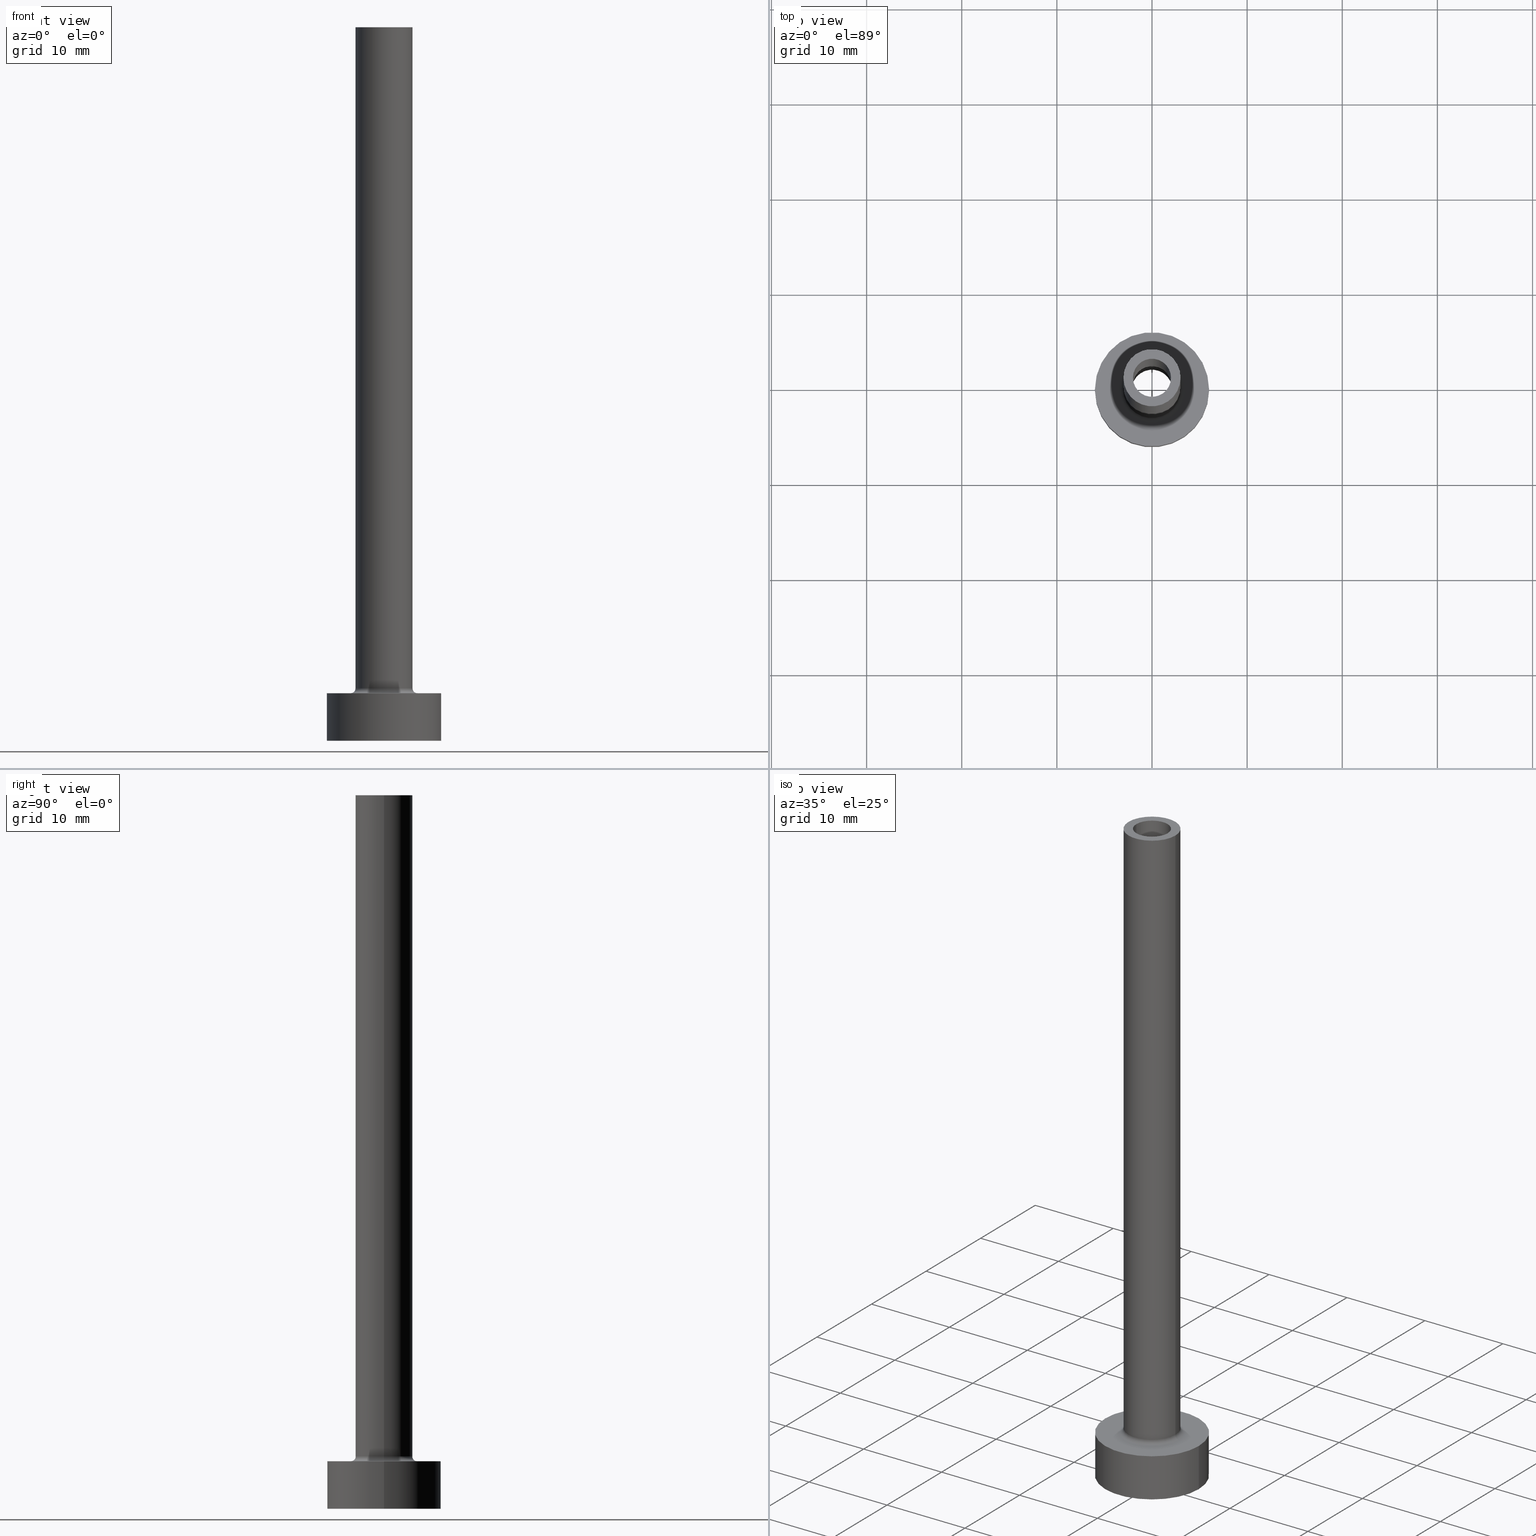
[diagram: canonical four-view strip — front | top / right | iso, engineering-drawing reading convention]
A machine part, canonical four-view strip (front | top / right | iso — engineering-drawing reading convention). The complete STEP part file that produces these views, byte-faithful:
ISO-10303-21;
HEADER;
FILE_DESCRIPTION (( 'STEP AP203' ),
    '1' );
FILE_NAME ('05cf.STEP',
    '2023-02-13T17:47:04',
    ( '' ),
    ( '' ),
    'SwSTEP 2.0',
    'SolidWorks 2019',
    '' );
FILE_SCHEMA (( 'CONFIG_CONTROL_DESIGN' ));
ENDSEC;

DATA;
#1 = APPLICATION_CONTEXT ( 'configuration controlled 3d designs of mechanical parts and assemblies' ) ;
#2 = PERSON_AND_ORGANIZATION_ROLE ( 'design_supplier' ) ;
#3 = EDGE_LOOP ( 'NONE', ( #11, #321 ) ) ;
#4 = APPROVAL_DATE_TIME ( #306, #213 ) ;
#5 = VERTEX_POINT ( 'NONE', #30 ) ;
#6 = EDGE_CURVE ( 'NONE', #357, #345, #346, .T. ) ;
#7 = FACE_OUTER_BOUND ( 'NONE', #389, .T. ) ;
#8 = ORIENTED_EDGE ( 'NONE', *, *, #394, .T. ) ;
#9 = DIRECTION ( 'NONE',  ( 0.000000000000000000, 0.000000000000000000, 1.000000000000000000 ) ) ;
#10 = VECTOR ( 'NONE', #258, 1000.000000000000000 ) ;
#11 = ORIENTED_EDGE ( 'NONE', *, *, #145, .F. ) ;
#12 = DIRECTION ( 'NONE',  ( 1.000000000000000000, 0.000000000000000000, 0.000000000000000000 ) ) ;
#13 = FACE_OUTER_BOUND ( 'NONE', #66, .T. ) ;
#14 = LOCAL_TIME ( 18, 47, 4.000000000000000000, #403 ) ;
#15 = FACE_OUTER_BOUND ( 'NONE', #135, .T. ) ;
#16 = EDGE_CURVE ( 'NONE', #442, #261, #282, .T. ) ;
#17 = DIRECTION ( 'NONE',  ( 0.000000000000000000, 0.000000000000000000, 1.000000000000000000 ) ) ;
#18 = VERTEX_POINT ( 'NONE', #305 ) ;
#19 = CARTESIAN_POINT ( 'NONE',  ( 0.000000000000000000, 0.000000000000000000, 30.00000000000001421 ) ) ;
#20 = EDGE_CURVE ( 'NONE', #5, #404, #72, .T. ) ;
#21 = DIRECTION ( 'NONE',  ( -0.000000000000000000, -0.000000000000000000, -1.000000000000000000 ) ) ;
#22 = DIRECTION ( 'NONE',  ( 0.000000000000000000, 0.000000000000000000, 1.000000000000000000 ) ) ;
#23 = CARTESIAN_POINT ( 'NONE',  ( -3.000000000000000444, 0.000000000000000000, 75.00000000000001421 ) ) ;
#24 = ORIENTED_EDGE ( 'NONE', *, *, #230, .F. ) ;
#25 = DIRECTION ( 'NONE',  ( 0.000000000000000000, 0.000000000000000000, -1.000000000000000000 ) ) ;
#26 = AXIS2_PLACEMENT_3D ( 'NONE', #125, #119, #201 ) ;
#27 = CIRCLE ( 'NONE', #209, 0.4999999999999995559 ) ;
#28 = ADVANCED_FACE ( 'NONE', ( #59 ), #89, .F. ) ;
#29 = DIRECTION ( 'NONE',  ( 0.000000000000000000, 0.000000000000000000, -1.000000000000000000 ) ) ;
#30 = CARTESIAN_POINT ( 'NONE',  ( -3.500000000000000444, 4.286263797015737088E-16, 5.000000000000002665 ) ) ;
#31 = CIRCLE ( 'NONE', #235, 2.149999999999999911 ) ;
#32 = DATE_AND_TIME ( #97, #319 ) ;
#33 = DIRECTION ( 'NONE',  ( 0.000000000000000000, 0.000000000000000000, -1.000000000000000000 ) ) ;
#34 = CARTESIAN_POINT ( 'NONE',  ( -2.149999999999999911, 0.000000000000000000, 0.000000000000000000 ) ) ;
#35 = ORIENTED_EDGE ( 'NONE', *, *, #400, .F. ) ;
#36 = DIRECTION ( 'NONE',  ( 1.000000000000000000, 0.000000000000000000, -0.000000000000000000 ) ) ;
#37 = ORIENTED_EDGE ( 'NONE', *, *, #225, .T. ) ;
#38 = CARTESIAN_POINT ( 'NONE',  ( -2.000000000000000000, 0.000000000000000000, 75.00000000000001421 ) ) ;
#39 = CIRCLE ( 'NONE', #273, 0.5000000000000004441 ) ;
#40 = APPLICATION_PROTOCOL_DEFINITION ( 'international standard', 'config_control_design', 1994, #449 ) ;
#41 = FACE_OUTER_BOUND ( 'NONE', #334, .T. ) ;
#42 = EDGE_CURVE ( 'NONE', #183, #5, #27, .T. ) ;
#43 = ORIENTED_EDGE ( 'NONE', *, *, #20, .T. ) ;
#44 = CARTESIAN_POINT ( 'NONE',  ( 0.000000000000000000, 0.000000000000000000, 5.500000000000005329 ) ) ;
#45 =( NAMED_UNIT ( * ) PLANE_ANGLE_UNIT ( ) SI_UNIT ( $, .RADIAN. ) );
#46 = CARTESIAN_POINT ( 'NONE',  ( 0.000000000000000000, 0.000000000000000000, 30.00000000000001421 ) ) ;
#47 = DIRECTION ( 'NONE',  ( 0.000000000000000000, 0.000000000000000000, 1.000000000000000000 ) ) ;
#48 = DIRECTION ( 'NONE',  ( -1.000000000000000000, 0.000000000000000000, 0.000000000000000000 ) ) ;
#49 = EDGE_CURVE ( 'NONE', #274, #385, #311, .T. ) ;
#50 = COORDINATED_UNIVERSAL_TIME_OFFSET ( 1, 0, .AHEAD. ) ;
#51 = CARTESIAN_POINT ( 'NONE',  ( 0.000000000000000000, 0.000000000000000000, 5.000000000000000000 ) ) ;
#52 = EDGE_LOOP ( 'NONE', ( #239, #140, #37, #98 ) ) ;
#53 = AXIS2_PLACEMENT_3D ( 'NONE', #108, #430, #432 ) ;
#54 = ORIENTED_EDGE ( 'NONE', *, *, #88, .F. ) ;
#55 = CARTESIAN_POINT ( 'NONE',  ( -2.000000000000000000, 0.000000000000000000, 75.00000000000001421 ) ) ;
#56 = AXIS2_PLACEMENT_3D ( 'NONE', #163, #82, #128 ) ;
#57 = CC_DESIGN_PERSON_AND_ORGANIZATION_ASSIGNMENT ( #275, #286, ( #411 ) ) ;
#58 = CARTESIAN_POINT ( 'NONE',  ( 0.000000000000000000, 0.000000000000000000, 5.000000000000000000 ) ) ;
#59 = FACE_OUTER_BOUND ( 'NONE', #280, .T. ) ;
#60 = ORIENTED_EDGE ( 'NONE', *, *, #42, .F. ) ;
#61 = DIRECTION ( 'NONE',  ( -1.000000000000000000, 0.000000000000000000, 0.000000000000000000 ) ) ;
#62 = FACE_OUTER_BOUND ( 'NONE', #52, .T. ) ;
#63 = ORIENTED_EDGE ( 'NONE', *, *, #230, .T. ) ;
#64 = ADVANCED_FACE ( 'NONE', ( #102 ), #325, .T. ) ;
#65 = CIRCLE ( 'NONE', #349, 3.500000000000000444 ) ;
#66 = EDGE_LOOP ( 'NONE', ( #109, #362 ) ) ;
#67 = EDGE_LOOP ( 'NONE', ( #252, #395, #234, #94 ) ) ;
#68 = PERSON_AND_ORGANIZATION_ROLE ( 'creator' ) ;
#69 = DIRECTION ( 'NONE',  ( 1.000000000000000000, 0.000000000000000000, -0.000000000000000000 ) ) ;
#70 = VECTOR ( 'NONE', #104, 1000.000000000000000 ) ;
#71 = EDGE_LOOP ( 'NONE', ( #117, #43 ) ) ;
#72 = CIRCLE ( 'NONE', #338, 3.500000000000000444 ) ;
#73 = DIRECTION ( 'NONE',  ( 1.000000000000000000, 0.000000000000000000, 0.000000000000000000 ) ) ;
#74 = AXIS2_PLACEMENT_3D ( 'NONE', #372, #177, #420 ) ;
#75 = CC_DESIGN_APPROVAL ( #213, ( #411 ) ) ;
#76 = CYLINDRICAL_SURFACE ( 'NONE', #427, 3.000000000000000444 ) ;
#77 = FACE_OUTER_BOUND ( 'NONE', #214, .T. ) ;
#78 = CARTESIAN_POINT ( 'NONE',  ( 2.149999999999999911, 2.632990618166808742E-16, 36.08111831820431803 ) ) ;
#79 = CYLINDRICAL_SURFACE ( 'NONE', #74, 6.000000000000000888 ) ;
#80 = VECTOR ( 'NONE', #291, 1000.000000000000000 ) ;
#81 = AXIS2_PLACEMENT_3D ( 'NONE', #240, #210, #456 ) ;
#82 = DIRECTION ( 'NONE',  ( 0.000000000000000000, 0.000000000000000000, 1.000000000000000000 ) ) ;
#83 = EDGE_CURVE ( 'NONE', #442, #18, #460, .T. ) ;
#84 = APPROVAL_STATUS ( 'not_yet_approved' ) ;
#85 = APPROVAL_DATE_TIME ( #382, #264 ) ;
#86 = FACE_OUTER_BOUND ( 'NONE', #250, .T. ) ;
#87 = AXIS2_PLACEMENT_3D ( 'NONE', #246, #136, #417 ) ;
#88 = EDGE_CURVE ( 'NONE', #183, #212, #423, .T. ) ;
#89 = CYLINDRICAL_SURFACE ( 'NONE', #147, 2.149999999999999911 ) ;
#90 = DIRECTION ( 'NONE',  ( 1.000000000000000000, 0.000000000000000000, 0.000000000000000000 ) ) ;
#91 = ORIENTED_EDGE ( 'NONE', *, *, #6, .T. ) ;
#92 = DIRECTION ( 'NONE',  ( -0.000000000000000000, -0.000000000000000000, -1.000000000000000000 ) ) ;
#93 = PERSON_AND_ORGANIZATION_ROLE ( 'classification_officer' ) ;
#94 = ORIENTED_EDGE ( 'NONE', *, *, #49, .F. ) ;
#95 = FACE_BOUND ( 'NONE', #436, .T. ) ;
#96 = CIRCLE ( 'NONE', #310, 2.000000000000000000 ) ;
#97 = CALENDAR_DATE ( 2023, 13, 2 ) ;
#98 = ORIENTED_EDGE ( 'NONE', *, *, #380, .T. ) ;
#99 = PRODUCT_RELATED_PRODUCT_CATEGORY ( 'detail', '', ( #269 ) ) ;
#100 = ORIENTED_EDGE ( 'NONE', *, *, #279, .F. ) ;
#101 = PERSON_AND_ORGANIZATION ( #378, #418 ) ;
#102 = FACE_OUTER_BOUND ( 'NONE', #332, .T. ) ;
#103 = DIRECTION ( 'NONE',  ( 0.000000000000000000, 0.000000000000000000, 1.000000000000000000 ) ) ;
#104 = DIRECTION ( 'NONE',  ( 0.000000000000000000, 0.000000000000000000, -1.000000000000000000 ) ) ;
#105 = AXIS2_PLACEMENT_3D ( 'NONE', #339, #121, #333 ) ;
#106 = ORIENTED_EDGE ( 'NONE', *, *, #173, .T. ) ;
#107 = APPROVAL_ROLE ( '' ) ;
#108 = CARTESIAN_POINT ( 'NONE',  ( 0.000000000000000000, 0.000000000000000000, 75.00000000000001421 ) ) ;
#109 = ORIENTED_EDGE ( 'NONE', *, *, #374, .T. ) ;
#110 = CARTESIAN_POINT ( 'NONE',  ( 0.000000000000000000, 0.000000000000000000, 5.000000000000000000 ) ) ;
#111 = DIRECTION ( 'NONE',  ( 1.000000000000000000, 0.000000000000000000, 0.000000000000000000 ) ) ;
#112 = ADVANCED_BREP_SHAPE_REPRESENTATION ( '05cf', ( #369, #259 ), #387 ) ;
#113 = FACE_BOUND ( 'NONE', #3, .T. ) ;
#114 = LINE ( 'NONE', #23, #155 ) ;
#115 = AXIS2_PLACEMENT_3D ( 'NONE', #166, #294, #262 ) ;
#116 = VERTEX_POINT ( 'NONE', #134 ) ;
#117 = ORIENTED_EDGE ( 'NONE', *, *, #268, .T. ) ;
#118 = DIRECTION ( 'NONE',  ( 1.000000000000000000, 0.000000000000000000, 0.000000000000000000 ) ) ;
#119 = DIRECTION ( 'NONE',  ( 0.000000000000000000, 0.000000000000000000, 1.000000000000000000 ) ) ;
#120 = PLANE ( 'NONE',  #398 ) ;
#121 = DIRECTION ( 'NONE',  ( 0.000000000000000000, 0.000000000000000000, -1.000000000000000000 ) ) ;
#122 = TOROIDAL_SURFACE ( 'NONE', #211, 3.500000000000000444, 0.5000000000000000000 ) ;
#123 = SECURITY_CLASSIFICATION ( '', '', #283 ) ;
#124 = DIRECTION ( 'NONE',  ( 1.000000000000000000, 0.000000000000000000, -0.000000000000000000 ) ) ;
#125 = CARTESIAN_POINT ( 'NONE',  ( 0.000000000000000000, 0.000000000000000000, 75.00000000000001421 ) ) ;
#126 = EDGE_CURVE ( 'NONE', #212, #183, #188, .T. ) ;
#127 = DIRECTION ( 'NONE',  ( -0.000000000000000000, -0.000000000000000000, -1.000000000000000000 ) ) ;
#128 = DIRECTION ( 'NONE',  ( 1.000000000000000000, 0.000000000000000000, 0.000000000000000000 ) ) ;
#129 = DATE_TIME_ROLE ( 'classification_date' ) ;
#130 = DIRECTION ( 'NONE',  ( 1.000000000000000000, 0.000000000000000000, 0.000000000000000000 ) ) ;
#131 = AXIS2_PLACEMENT_3D ( 'NONE', #217, #17, #36 ) ;
#132 = AXIS2_PLACEMENT_3D ( 'NONE', #254, #257, #69 ) ;
#133 = DIRECTION ( 'NONE',  ( 1.000000000000000000, 0.000000000000000000, 0.000000000000000000 ) ) ;
#134 = CARTESIAN_POINT ( 'NONE',  ( -3.000000000000000444, 0.000000000000000000, 75.00000000000001421 ) ) ;
#135 = EDGE_LOOP ( 'NONE', ( #266, #426, #379, #100 ) ) ;
#136 = DIRECTION ( 'NONE',  ( 0.000000000000000000, 0.000000000000000000, 1.000000000000000000 ) ) ;
#137 = EDGE_CURVE ( 'NONE', #116, #447, #222, .T. ) ;
#138 = VECTOR ( 'NONE', #33, 1000.000000000000000 ) ;
#139 = PERSON_AND_ORGANIZATION ( #378, #418 ) ;
#140 = ORIENTED_EDGE ( 'NONE', *, *, #374, .F. ) ;
#141 = CC_DESIGN_DATE_AND_TIME_ASSIGNMENT ( #215, #359, ( #232 ) ) ;
#142 = ORIENTED_EDGE ( 'NONE', *, *, #173, .F. ) ;
#143 = CIRCLE ( 'NONE', #87, 6.000000000000000888 ) ;
#144 = APPROVAL_PERSON_ORGANIZATION ( #435, #206, #107 ) ;
#145 = EDGE_CURVE ( 'NONE', #345, #357, #278, .T. ) ;
#146 = DIRECTION ( 'NONE',  ( -1.000000000000000000, 0.000000000000000000, 0.000000000000000000 ) ) ;
#147 = AXIS2_PLACEMENT_3D ( 'NONE', #171, #408, #174 ) ;
#148 = DIRECTION ( 'NONE',  ( 0.000000000000000000, 0.000000000000000000, 1.000000000000000000 ) ) ;
#149 = LINE ( 'NONE', #390, #446 ) ;
#150 = VERTEX_POINT ( 'NONE', #438 ) ;
#151 = MECHANICAL_CONTEXT ( 'NONE', #1, 'mechanical' ) ;
#152 = FACE_OUTER_BOUND ( 'NONE', #371, .T. ) ;
#153 = CARTESIAN_POINT ( 'NONE',  ( 0.000000000000000000, 0.000000000000000000, 75.00000000000001421 ) ) ;
#154 = CARTESIAN_POINT ( 'NONE',  ( -3.000000000000000444, 0.000000000000000000, 5.500000000000005329 ) ) ;
#155 = VECTOR ( 'NONE', #158, 1000.000000000000000 ) ;
#156 = APPROVAL_DATE_TIME ( #224, #206 ) ;
#157 = DIRECTION ( 'NONE',  ( 0.000000000000000000, 0.000000000000000000, 1.000000000000000000 ) ) ;
#158 = DIRECTION ( 'NONE',  ( -0.000000000000000000, -0.000000000000000000, -1.000000000000000000 ) ) ;
#159 = CIRCLE ( 'NONE', #81, 2.000000000000000000 ) ;
#160 = LOCAL_TIME ( 18, 47, 4.000000000000000000, #50 ) ;
#161 = ADVANCED_FACE ( 'NONE', ( #15 ), #354, .T. ) ;
#162 = FACE_BOUND ( 'NONE', #391, .T. ) ;
#163 = CARTESIAN_POINT ( 'NONE',  ( 0.000000000000000000, 0.000000000000000000, 5.000000000000000000 ) ) ;
#164 = ORIENTED_EDGE ( 'NONE', *, *, #186, .T. ) ;
#165 = EDGE_CURVE ( 'NONE', #18, #229, #358, .T. ) ;
#166 = CARTESIAN_POINT ( 'NONE',  ( 0.000000000000000000, 0.000000000000000000, 0.000000000000000000 ) ) ;
#167 = FACE_OUTER_BOUND ( 'NONE', #182, .T. ) ;
#168 = AXIS2_PLACEMENT_3D ( 'NONE', #110, #187, #189 ) ;
#169 = FACE_OUTER_BOUND ( 'NONE', #67, .T. ) ;
#170 = DIRECTION ( 'NONE',  ( -0.000000000000000000, -0.000000000000000000, -1.000000000000000000 ) ) ;
#171 = CARTESIAN_POINT ( 'NONE',  ( 0.000000000000000000, 0.000000000000000000, 36.08111831820431803 ) ) ;
#172 = CIRCLE ( 'NONE', #396, 2.149999999999999911 ) ;
#173 = EDGE_CURVE ( 'NONE', #150, #274, #31, .T. ) ;
#174 = DIRECTION ( 'NONE',  ( -1.000000000000000000, 0.000000000000000000, 0.000000000000000000 ) ) ;
#175 = APPROVAL_STATUS ( 'not_yet_approved' ) ;
#176 = DIRECTION ( 'NONE',  ( 0.000000000000000000, 0.000000000000000000, 1.000000000000000000 ) ) ;
#177 = DIRECTION ( 'NONE',  ( -0.000000000000000000, -0.000000000000000000, -1.000000000000000000 ) ) ;
#178 = AXIS2_PLACEMENT_3D ( 'NONE', #44, #191, #328 ) ;
#179 = APPROVAL_ROLE ( '' ) ;
#180 = ORIENTED_EDGE ( 'NONE', *, *, #83, .T. ) ;
#181 = EDGE_CURVE ( 'NONE', #447, #212, #149, .T. ) ;
#182 = EDGE_LOOP ( 'NONE', ( #336, #276, #200, #352 ) ) ;
#183 = VERTEX_POINT ( 'NONE', #154 ) ;
#184 = CARTESIAN_POINT ( 'NONE',  ( 0.000000000000000000, 0.000000000000000000, 5.500000000000005329 ) ) ;
#185 = LOCAL_TIME ( 18, 47, 4.000000000000000000, #253 ) ;
#186 = EDGE_CURVE ( 'NONE', #419, #287, #96, .T. ) ;
#187 = DIRECTION ( 'NONE',  ( -0.000000000000000000, -0.000000000000000000, -1.000000000000000000 ) ) ;
#188 = CIRCLE ( 'NONE', #453, 3.000000000000000444 ) ;
#189 = DIRECTION ( 'NONE',  ( -1.000000000000000000, 0.000000000000000000, 0.000000000000000000 ) ) ;
#190 = DIRECTION ( 'NONE',  ( 1.000000000000000000, 0.000000000000000000, 0.000000000000000000 ) ) ;
#191 = DIRECTION ( 'NONE',  ( 0.000000000000000000, 0.000000000000000000, 1.000000000000000000 ) ) ;
#192 = DIRECTION ( 'NONE',  ( 1.000000000000000000, 0.000000000000000000, 0.000000000000000000 ) ) ;
#193 = AXIS2_PLACEMENT_3D ( 'NONE', #248, #148, #316 ) ;
#194 = AXIS2_PLACEMENT_3D ( 'NONE', #313, #415, #61 ) ;
#195 = ORIENTED_EDGE ( 'NONE', *, *, #20, .F. ) ;
#196 = APPROVAL_STATUS ( 'not_yet_approved' ) ;
#197 = ORIENTED_EDGE ( 'NONE', *, *, #343, .F. ) ;
#198 = EDGE_CURVE ( 'NONE', #357, #287, #433, .T. ) ;
#199 = CARTESIAN_POINT ( 'NONE',  ( 3.500000000000000444, 0.000000000000000000, 5.500000000000005329 ) ) ;
#200 = ORIENTED_EDGE ( 'NONE', *, *, #279, .T. ) ;
#201 = DIRECTION ( 'NONE',  ( 1.000000000000000000, 0.000000000000000000, 0.000000000000000000 ) ) ;
#202 = CC_DESIGN_PERSON_AND_ORGANIZATION_ASSIGNMENT ( #425, #93, ( #123 ) ) ;
#203 = APPROVAL_PERSON_ORGANIZATION ( #397, #213, #302 ) ;
#204 = ORIENTED_EDGE ( 'NONE', *, *, #137, .T. ) ;
#205 = FACE_OUTER_BOUND ( 'NONE', #429, .T. ) ;
#206 = APPROVAL ( #196, 'NEUR�EN�' ) ;
#207 = ORIENTED_EDGE ( 'NONE', *, *, #400, .T. ) ;
#208 = DIRECTION ( 'NONE',  ( 1.000000000000000000, 0.000000000000000000, 0.000000000000000000 ) ) ;
#209 = AXIS2_PLACEMENT_3D ( 'NONE', #344, #455, #377 ) ;
#210 = DIRECTION ( 'NONE',  ( 0.000000000000000000, 0.000000000000000000, 1.000000000000000000 ) ) ;
#211 = AXIS2_PLACEMENT_3D ( 'NONE', #272, #407, #444 ) ;
#212 = VERTEX_POINT ( 'NONE', #223 ) ;
#213 = APPROVAL ( #84, 'NEUR�EN�' ) ;
#214 = EDGE_LOOP ( 'NONE', ( #54, #381, #289, #228 ) ) ;
#215 = DATE_AND_TIME ( #260, #14 ) ;
#216 = CC_DESIGN_SECURITY_CLASSIFICATION ( #123, ( #411 ) ) ;
#217 = CARTESIAN_POINT ( 'NONE',  ( 0.000000000000000000, 0.000000000000000000, 75.00000000000001421 ) ) ;
#218 = ORIENTED_EDGE ( 'NONE', *, *, #225, .F. ) ;
#219 = PLANE ( 'NONE',  #132 ) ;
#220 = EDGE_CURVE ( 'NONE', #447, #116, #434, .T. ) ;
#221 =( NAMED_UNIT ( * ) SI_UNIT ( $, .STERADIAN. ) SOLID_ANGLE_UNIT ( ) );
#222 = CIRCLE ( 'NONE', #193, 3.000000000000000444 ) ;
#223 = CARTESIAN_POINT ( 'NONE',  ( 3.000000000000000444, 3.673940397442060361E-16, 5.500000000000005329 ) ) ;
#224 = DATE_AND_TIME ( #392, #185 ) ;
#225 = EDGE_CURVE ( 'NONE', #261, #229, #255, .T. ) ;
#226 = VECTOR ( 'NONE', #29, 1000.000000000000000 ) ;
#227 = CARTESIAN_POINT ( 'NONE',  ( 2.000000000000000000, 2.449293598294705921E-16, 30.00000000000001421 ) ) ;
#228 = ORIENTED_EDGE ( 'NONE', *, *, #312, .F. ) ;
#229 = VERTEX_POINT ( 'NONE', #251 ) ;
#230 = EDGE_CURVE ( 'NONE', #345, #419, #399, .T. ) ;
#231 = CARTESIAN_POINT ( 'NONE',  ( 0.000000000000000000, 0.000000000000000000, 0.000000000000000000 ) ) ;
#232 = PRODUCT_DEFINITION ( 'NEZN�M�', '', #411, #315 ) ;
#233 = ORIENTED_EDGE ( 'NONE', *, *, #49, .T. ) ;
#234 = ORIENTED_EDGE ( 'NONE', *, *, #356, .T. ) ;
#235 = AXIS2_PLACEMENT_3D ( 'NONE', #19, #330, #190 ) ;
#236 = AXIS2_PLACEMENT_3D ( 'NONE', #281, #92, #130 ) ;
#237 = CARTESIAN_POINT ( 'NONE',  ( -2.149999999999999911, 0.000000000000000000, 30.00000000000001421 ) ) ;
#238 = CARTESIAN_POINT ( 'NONE',  ( 0.000000000000000000, 0.000000000000000000, 5.000000000000000000 ) ) ;
#239 = ORIENTED_EDGE ( 'NONE', *, *, #83, .F. ) ;
#240 = CARTESIAN_POINT ( 'NONE',  ( 0.000000000000000000, 0.000000000000000000, 30.00000000000001421 ) ) ;
#241 = SHAPE_DEFINITION_REPRESENTATION ( #327, #112 ) ;
#242 = AXIS2_PLACEMENT_3D ( 'NONE', #326, #355, #111 ) ;
#243 = ADVANCED_FACE ( 'NONE', ( #113, #7 ), #323, .T. ) ;
#244 = DIRECTION ( 'NONE',  ( -0.000000000000000000, -0.000000000000000000, -1.000000000000000000 ) ) ;
#245 = CALENDAR_DATE ( 2023, 13, 2 ) ;
#246 = CARTESIAN_POINT ( 'NONE',  ( 0.000000000000000000, 0.000000000000000000, 0.000000000000000000 ) ) ;
#247 = ADVANCED_FACE ( 'NONE', ( #41 ), #309, .F. ) ;
#248 = CARTESIAN_POINT ( 'NONE',  ( 0.000000000000000000, 0.000000000000000000, 75.00000000000001421 ) ) ;
#249 = ORIENTED_EDGE ( 'NONE', *, *, #220, .T. ) ;
#250 = EDGE_LOOP ( 'NONE', ( #318, #91, #63, #350 ) ) ;
#251 = CARTESIAN_POINT ( 'NONE',  ( -6.000000000000000888, 0.000000000000000000, 0.000000000000000000 ) ) ;
#252 = ORIENTED_EDGE ( 'NONE', *, *, #298, .T. ) ;
#253 = COORDINATED_UNIVERSAL_TIME_OFFSET ( 1, 0, .AHEAD. ) ;
#254 = CARTESIAN_POINT ( 'NONE',  ( 0.000000000000000000, 0.000000000000000000, 0.000000000000000000 ) ) ;
#255 = LINE ( 'NONE', #428, #365 ) ;
#256 = APPLICATION_PROTOCOL_DEFINITION ( 'international standard', 'config_control_design', 1994, #1 ) ;
#257 = DIRECTION ( 'NONE',  ( 0.000000000000000000, 0.000000000000000000, 1.000000000000000000 ) ) ;
#258 = DIRECTION ( 'NONE',  ( -0.000000000000000000, -0.000000000000000000, -1.000000000000000000 ) ) ;
#259 = AXIS2_PLACEMENT_3D ( 'NONE', #401, #47, #12 ) ;
#260 = CALENDAR_DATE ( 2023, 13, 2 ) ;
#261 = VERTEX_POINT ( 'NONE', #450 ) ;
#262 = DIRECTION ( 'NONE',  ( 1.000000000000000000, 0.000000000000000000, 0.000000000000000000 ) ) ;
#263 = DIRECTION ( 'NONE',  ( -0.000000000000000000, -0.000000000000000000, -1.000000000000000000 ) ) ;
#264 = APPROVAL ( #175, 'NEUR�EN�' ) ;
#265 = AXIS2_PLACEMENT_3D ( 'NONE', #231, #127, #133 ) ;
#266 = ORIENTED_EDGE ( 'NONE', *, *, #220, .F. ) ;
#267 = CALENDAR_DATE ( 2023, 13, 2 ) ;
#268 = EDGE_CURVE ( 'NONE', #404, #5, #65, .T. ) ;
#269 = PRODUCT ( '05cf', '05cf', '', ( #151 ) ) ;
#270 = CARTESIAN_POINT ( 'NONE',  ( 2.149999999999999911, 2.632990618166808742E-16, 0.000000000000000000 ) ) ;
#271 = DIRECTION ( 'NONE',  ( 1.000000000000000000, 0.000000000000000000, 0.000000000000000000 ) ) ;
#272 = CARTESIAN_POINT ( 'NONE',  ( 0.000000000000000000, 0.000000000000000000, 5.500000000000005329 ) ) ;
#273 = AXIS2_PLACEMENT_3D ( 'NONE', #199, #337, #25 ) ;
#274 = VERTEX_POINT ( 'NONE', #237 ) ;
#275 = PERSON_AND_ORGANIZATION ( #378, #418 ) ;
#276 = ORIENTED_EDGE ( 'NONE', *, *, #137, .F. ) ;
#277 = CARTESIAN_POINT ( 'NONE',  ( -2.000000000000000000, 0.000000000000000000, 30.00000000000001421 ) ) ;
#278 = CIRCLE ( 'NONE', #293, 2.000000000000000000 ) ;
#279 = EDGE_CURVE ( 'NONE', #116, #183, #114, .T. ) ;
#280 = EDGE_LOOP ( 'NONE', ( #197, #106, #233, #207 ) ) ;
#281 = CARTESIAN_POINT ( 'NONE',  ( 0.000000000000000000, 0.000000000000000000, 0.000000000000000000 ) ) ;
#282 = CIRCLE ( 'NONE', #56, 6.000000000000000888 ) ;
#283 = SECURITY_CLASSIFICATION_LEVEL ( 'unclassified' ) ;
#284 = ORIENTED_EDGE ( 'NONE', *, *, #165, .F. ) ;
#285 = CYLINDRICAL_SURFACE ( 'NONE', #53, 2.000000000000000000 ) ;
#286 = PERSON_AND_ORGANIZATION_ROLE ( 'creator' ) ;
#287 = VERTEX_POINT ( 'NONE', #227 ) ;
#288 = CIRCLE ( 'NONE', #341, 6.000000000000000888 ) ;
#289 = ORIENTED_EDGE ( 'NONE', *, *, #268, .F. ) ;
#290 = ADVANCED_FACE ( 'NONE', ( #162, #205 ), #304, .F. ) ;
#291 = DIRECTION ( 'NONE',  ( 0.000000000000000000, 0.000000000000000000, -1.000000000000000000 ) ) ;
#292 = ORIENTED_EDGE ( 'NONE', *, *, #356, .F. ) ;
#293 = AXIS2_PLACEMENT_3D ( 'NONE', #153, #329, #295 ) ;
#294 = DIRECTION ( 'NONE',  ( 0.000000000000000000, 0.000000000000000000, 1.000000000000000000 ) ) ;
#295 = DIRECTION ( 'NONE',  ( 1.000000000000000000, 0.000000000000000000, 0.000000000000000000 ) ) ;
#296 = CC_DESIGN_PERSON_AND_ORGANIZATION_ASSIGNMENT ( #299, #68, ( #232 ) ) ;
#297 = CARTESIAN_POINT ( 'NONE',  ( 0.000000000000000000, 0.000000000000000000, 5.500000000000005329 ) ) ;
#298 = EDGE_CURVE ( 'NONE', #274, #150, #172, .T. ) ;
#299 = PERSON_AND_ORGANIZATION ( #378, #418 ) ;
#300 = DIRECTION ( 'NONE',  ( 1.000000000000000000, 0.000000000000000000, 0.000000000000000000 ) ) ;
#301 = ADVANCED_FACE ( 'NONE', ( #406 ), #122, .F. ) ;
#302 = APPROVAL_ROLE ( '' ) ;
#303 = DIRECTION ( 'NONE',  ( 0.000000000000000000, 0.000000000000000000, 1.000000000000000000 ) ) ;
#304 = PLANE ( 'NONE',  #409 ) ;
#305 = CARTESIAN_POINT ( 'NONE',  ( 6.000000000000000888, 7.347880794884120722E-16, 0.000000000000000000 ) ) ;
#306 = DATE_AND_TIME ( #267, #160 ) ;
#307 = CARTESIAN_POINT ( 'NONE',  ( 0.000000000000000000, 0.000000000000000000, 30.00000000000001421 ) ) ;
#308 = CYLINDRICAL_SURFACE ( 'NONE', #194, 2.149999999999999911 ) ;
#309 = CYLINDRICAL_SURFACE ( 'NONE', #105, 2.000000000000000000 ) ;
#310 = AXIS2_PLACEMENT_3D ( 'NONE', #353, #103, #73 ) ;
#311 = LINE ( 'NONE', #416, #138 ) ;
#312 = EDGE_CURVE ( 'NONE', #212, #404, #39, .T. ) ;
#313 = CARTESIAN_POINT ( 'NONE',  ( 0.000000000000000000, 0.000000000000000000, 36.08111831820431803 ) ) ;
#314 = CC_DESIGN_PERSON_AND_ORGANIZATION_ASSIGNMENT ( #139, #2, ( #411 ) ) ;
#315 = DESIGN_CONTEXT ( 'detailed design', #449, 'design' ) ;
#316 = DIRECTION ( 'NONE',  ( 1.000000000000000000, 0.000000000000000000, 0.000000000000000000 ) ) ;
#317 = AXIS2_PLACEMENT_3D ( 'NONE', #441, #244, #146 ) ;
#318 = ORIENTED_EDGE ( 'NONE', *, *, #198, .F. ) ;
#319 = LOCAL_TIME ( 18, 47, 4.000000000000000000, #342 ) ;
#320 = ORIENTED_EDGE ( 'NONE', *, *, #198, .T. ) ;
#321 = ORIENTED_EDGE ( 'NONE', *, *, #6, .F. ) ;
#322 = DIRECTION ( 'NONE',  ( -0.000000000000000000, -0.000000000000000000, -1.000000000000000000 ) ) ;
#323 = PLANE ( 'NONE',  #131 ) ;
#324 = VERTEX_POINT ( 'NONE', #270 ) ;
#325 = CYLINDRICAL_SURFACE ( 'NONE', #168, 6.000000000000000888 ) ;
#326 = CARTESIAN_POINT ( 'NONE',  ( 0.000000000000000000, 0.000000000000000000, 75.00000000000001421 ) ) ;
#327 = PRODUCT_DEFINITION_SHAPE ( 'NONE', 'NONE',  #232 ) ;
#328 = DIRECTION ( 'NONE',  ( 1.000000000000000000, 0.000000000000000000, 0.000000000000000000 ) ) ;
#329 = DIRECTION ( 'NONE',  ( 0.000000000000000000, 0.000000000000000000, 1.000000000000000000 ) ) ;
#330 = DIRECTION ( 'NONE',  ( 0.000000000000000000, 0.000000000000000000, 1.000000000000000000 ) ) ;
#331 = CARTESIAN_POINT ( 'NONE',  ( 0.000000000000000000, 0.000000000000000000, 5.000000000000000000 ) ) ;
#332 = EDGE_LOOP ( 'NONE', ( #440, #180, #402, #218 ) ) ;
#333 = DIRECTION ( 'NONE',  ( -1.000000000000000000, 0.000000000000000000, 0.000000000000000000 ) ) ;
#334 = EDGE_LOOP ( 'NONE', ( #364, #320, #405, #24 ) ) ;
#335 = DIRECTION ( 'NONE',  ( 1.000000000000000000, 0.000000000000000000, -0.000000000000000000 ) ) ;
#336 = ORIENTED_EDGE ( 'NONE', *, *, #181, .F. ) ;
#337 = DIRECTION ( 'NONE',  ( 0.000000000000000000, -1.000000000000000000, 0.000000000000000000 ) ) ;
#338 = AXIS2_PLACEMENT_3D ( 'NONE', #238, #451, #271 ) ;
#339 = CARTESIAN_POINT ( 'NONE',  ( 0.000000000000000000, 0.000000000000000000, 75.00000000000001421 ) ) ;
#340 = ADVANCED_FACE ( 'NONE', ( #167 ), #76, .T. ) ;
#341 = AXIS2_PLACEMENT_3D ( 'NONE', #58, #347, #90 ) ;
#342 = COORDINATED_UNIVERSAL_TIME_OFFSET ( 1, 0, .AHEAD. ) ;
#343 = EDGE_CURVE ( 'NONE', #150, #324, #410, .T. ) ;
#344 = CARTESIAN_POINT ( 'NONE',  ( -3.500000000000000444, 4.286263797015737088E-16, 5.500000000000005329 ) ) ;
#345 = VERTEX_POINT ( 'NONE', #55 ) ;
#346 = CIRCLE ( 'NONE', #26, 2.000000000000000000 ) ;
#347 = DIRECTION ( 'NONE',  ( 0.000000000000000000, 0.000000000000000000, 1.000000000000000000 ) ) ;
#348 = CARTESIAN_POINT ( 'NONE',  ( 2.000000000000000000, 2.449293598294705921E-16, 75.00000000000001421 ) ) ;
#349 = AXIS2_PLACEMENT_3D ( 'NONE', #331, #21, #300 ) ;
#350 = ORIENTED_EDGE ( 'NONE', *, *, #394, .F. ) ;
#351 = CC_DESIGN_APPROVAL ( #206, ( #232 ) ) ;
#352 = ORIENTED_EDGE ( 'NONE', *, *, #88, .T. ) ;
#353 = CARTESIAN_POINT ( 'NONE',  ( 0.000000000000000000, 0.000000000000000000, 30.00000000000001421 ) ) ;
#354 = CYLINDRICAL_SURFACE ( 'NONE', #317, 3.000000000000000444 ) ;
#355 = DIRECTION ( 'NONE',  ( 0.000000000000000000, 0.000000000000000000, 1.000000000000000000 ) ) ;
#356 = EDGE_CURVE ( 'NONE', #324, #385, #384, .T. ) ;
#357 = VERTEX_POINT ( 'NONE', #348 ) ;
#358 = CIRCLE ( 'NONE', #115, 6.000000000000000888 ) ;
#359 = DATE_TIME_ROLE ( 'creation_date' ) ;
#360 = UNCERTAINTY_MEASURE_WITH_UNIT (LENGTH_MEASURE( 1.000000000000000082E-05 ), #375, 'distance_accuracy_value', 'NONE');
#361 = CC_DESIGN_DATE_AND_TIME_ASSIGNMENT ( #32, #129, ( #123 ) ) ;
#362 = ORIENTED_EDGE ( 'NONE', *, *, #16, .T. ) ;
#363 = CARTESIAN_POINT ( 'NONE',  ( 2.000000000000000000, 2.449293598294705921E-16, 75.00000000000001421 ) ) ;
#364 = ORIENTED_EDGE ( 'NONE', *, *, #145, .T. ) ;
#365 = VECTOR ( 'NONE', #263, 1000.000000000000000 ) ;
#366 = TOROIDAL_SURFACE ( 'NONE', #178, 3.500000000000000444, 0.5000000000000000000 ) ;
#367 = ADVANCED_FACE ( 'NONE', ( #62 ), #79, .T. ) ;
#368 = CARTESIAN_POINT ( 'NONE',  ( 0.000000000000000000, 0.000000000000000000, 75.00000000000001421 ) ) ;
#369 = MANIFOLD_SOLID_BREP ( 'Odebrat vysunut�m4', #422 ) ;
#370 = ORIENTED_EDGE ( 'NONE', *, *, #312, .T. ) ;
#371 = EDGE_LOOP ( 'NONE', ( #413, #284 ) ) ;
#372 = CARTESIAN_POINT ( 'NONE',  ( 0.000000000000000000, 0.000000000000000000, 5.000000000000000000 ) ) ;
#373 = CIRCLE ( 'NONE', #236, 2.149999999999999911 ) ;
#374 = EDGE_CURVE ( 'NONE', #261, #442, #288, .T. ) ;
#375 =( LENGTH_UNIT ( ) NAMED_UNIT ( * ) SI_UNIT ( .MILLI., .METRE. ) );
#376 = AXIS2_PLACEMENT_3D ( 'NONE', #184, #176, #192 ) ;
#377 = DIRECTION ( 'NONE',  ( -1.000000000000000000, 1.224646799147354440E-16, 0.000000000000000000 ) ) ;
#378 = PERSON ( 'NEUR�EN�', 'NEUR�EN�', 'NEUR�EN�', ('NEUR�EN�'), ('NEUR�EN�'), ('NEUR�EN�') ) ;
#379 = ORIENTED_EDGE ( 'NONE', *, *, #126, .T. ) ;
#380 = EDGE_CURVE ( 'NONE', #229, #18, #143, .T. ) ;
#381 = ORIENTED_EDGE ( 'NONE', *, *, #42, .T. ) ;
#382 = DATE_AND_TIME ( #245, #454 ) ;
#383 = PERSON_AND_ORGANIZATION ( #378, #418 ) ;
#384 = CIRCLE ( 'NONE', #265, 2.149999999999999911 ) ;
#385 = VERTEX_POINT ( 'NONE', #34 ) ;
#386 = CC_DESIGN_PERSON_AND_ORGANIZATION_ASSIGNMENT ( #101, #431, ( #269 ) ) ;
#387 =( GEOMETRIC_REPRESENTATION_CONTEXT ( 3 ) GLOBAL_UNCERTAINTY_ASSIGNED_CONTEXT ( ( #360 ) ) GLOBAL_UNIT_ASSIGNED_CONTEXT ( ( #375, #45, #221 ) ) REPRESENTATION_CONTEXT ( 'NONE', 'WORKASPACE' ) );
#388 = FACE_BOUND ( 'NONE', #71, .T. ) ;
#389 = EDGE_LOOP ( 'NONE', ( #204, #249 ) ) ;
#390 = CARTESIAN_POINT ( 'NONE',  ( 3.000000000000000444, 3.673940397442060361E-16, 75.00000000000001421 ) ) ;
#391 = EDGE_LOOP ( 'NONE', ( #164, #8 ) ) ;
#392 = CALENDAR_DATE ( 2023, 13, 2 ) ;
#393 = CARTESIAN_POINT ( 'NONE',  ( 6.000000000000000888, 7.347880794884120722E-16, 5.000000000000000000 ) ) ;
#394 = EDGE_CURVE ( 'NONE', #287, #419, #159, .T. ) ;
#395 = ORIENTED_EDGE ( 'NONE', *, *, #343, .T. ) ;
#396 = AXIS2_PLACEMENT_3D ( 'NONE', #307, #157, #118 ) ;
#397 = PERSON_AND_ORGANIZATION ( #378, #418 ) ;
#398 = AXIS2_PLACEMENT_3D ( 'NONE', #51, #22, #335 ) ;
#399 = LINE ( 'NONE', #38, #80 ) ;
#400 = EDGE_CURVE ( 'NONE', #385, #324, #373, .T. ) ;
#401 = CARTESIAN_POINT ( 'NONE',  ( 0.000000000000000000, 0.000000000000000000, 0.000000000000000000 ) ) ;
#402 = ORIENTED_EDGE ( 'NONE', *, *, #165, .T. ) ;
#403 = COORDINATED_UNIVERSAL_TIME_OFFSET ( 1, 0, .AHEAD. ) ;
#404 = VERTEX_POINT ( 'NONE', #458 ) ;
#405 = ORIENTED_EDGE ( 'NONE', *, *, #186, .F. ) ;
#406 = FACE_OUTER_BOUND ( 'NONE', #412, .T. ) ;
#407 = DIRECTION ( 'NONE',  ( 0.000000000000000000, 0.000000000000000000, 1.000000000000000000 ) ) ;
#408 = DIRECTION ( 'NONE',  ( 0.000000000000000000, 0.000000000000000000, -1.000000000000000000 ) ) ;
#409 = AXIS2_PLACEMENT_3D ( 'NONE', #46, #303, #124 ) ;
#410 = LINE ( 'NONE', #78, #226 ) ;
#411 = PRODUCT_DEFINITION_FORMATION_WITH_SPECIFIED_SOURCE ( 'LIBOVOLN�', '', #269, .NOT_KNOWN. ) ;
#412 = EDGE_LOOP ( 'NONE', ( #60, #443, #370, #195 ) ) ;
#413 = ORIENTED_EDGE ( 'NONE', *, *, #380, .F. ) ;
#414 = ADVANCED_FACE ( 'NONE', ( #169 ), #308, .F. ) ;
#415 = DIRECTION ( 'NONE',  ( 0.000000000000000000, 0.000000000000000000, -1.000000000000000000 ) ) ;
#416 = CARTESIAN_POINT ( 'NONE',  ( -2.149999999999999911, 0.000000000000000000, 36.08111831820431803 ) ) ;
#417 = DIRECTION ( 'NONE',  ( 1.000000000000000000, 0.000000000000000000, 0.000000000000000000 ) ) ;
#418 = ORGANIZATION ( 'NEUR�EN�', 'NEUR�EN�', '' ) ;
#419 = VERTEX_POINT ( 'NONE', #277 ) ;
#420 = DIRECTION ( 'NONE',  ( -1.000000000000000000, 0.000000000000000000, 0.000000000000000000 ) ) ;
#421 = ADVANCED_FACE ( 'NONE', ( #86 ), #285, .F. ) ;
#422 = CLOSED_SHELL ( 'NONE', ( #247, #414, #448, #161, #64, #367, #439, #424, #340, #243, #301, #28, #290, #421 ) ) ;
#423 = CIRCLE ( 'NONE', #376, 3.000000000000000444 ) ;
#424 = ADVANCED_FACE ( 'NONE', ( #95, #152 ), #219, .F. ) ;
#425 = PERSON_AND_ORGANIZATION ( #378, #418 ) ;
#426 = ORIENTED_EDGE ( 'NONE', *, *, #181, .T. ) ;
#427 = AXIS2_PLACEMENT_3D ( 'NONE', #368, #170, #48 ) ;
#428 = CARTESIAN_POINT ( 'NONE',  ( -6.000000000000000888, 0.000000000000000000, 5.000000000000000000 ) ) ;
#429 = EDGE_LOOP ( 'NONE', ( #461, #142 ) ) ;
#430 = DIRECTION ( 'NONE',  ( 0.000000000000000000, 0.000000000000000000, -1.000000000000000000 ) ) ;
#431 = PERSON_AND_ORGANIZATION_ROLE ( 'design_owner' ) ;
#432 = DIRECTION ( 'NONE',  ( -1.000000000000000000, 0.000000000000000000, 0.000000000000000000 ) ) ;
#433 = LINE ( 'NONE', #363, #70 ) ;
#434 = CIRCLE ( 'NONE', #242, 3.000000000000000444 ) ;
#435 = PERSON_AND_ORGANIZATION ( #378, #418 ) ;
#436 = EDGE_LOOP ( 'NONE', ( #35, #292 ) ) ;
#437 = CC_DESIGN_APPROVAL ( #264, ( #123 ) ) ;
#438 = CARTESIAN_POINT ( 'NONE',  ( 2.149999999999999911, 2.632990618166808742E-16, 30.00000000000001421 ) ) ;
#439 = ADVANCED_FACE ( 'NONE', ( #388, #13 ), #120, .T. ) ;
#440 = ORIENTED_EDGE ( 'NONE', *, *, #16, .F. ) ;
#441 = CARTESIAN_POINT ( 'NONE',  ( 0.000000000000000000, 0.000000000000000000, 75.00000000000001421 ) ) ;
#442 = VERTEX_POINT ( 'NONE', #452 ) ;
#443 = ORIENTED_EDGE ( 'NONE', *, *, #126, .F. ) ;
#444 = DIRECTION ( 'NONE',  ( 1.000000000000000000, 0.000000000000000000, 0.000000000000000000 ) ) ;
#445 = CARTESIAN_POINT ( 'NONE',  ( 3.000000000000000444, 3.673940397442060361E-16, 75.00000000000001421 ) ) ;
#446 = VECTOR ( 'NONE', #322, 1000.000000000000000 ) ;
#447 = VERTEX_POINT ( 'NONE', #445 ) ;
#448 = ADVANCED_FACE ( 'NONE', ( #77 ), #366, .F. ) ;
#449 = APPLICATION_CONTEXT ( 'configuration controlled 3d designs of mechanical parts and assemblies' ) ;
#450 = CARTESIAN_POINT ( 'NONE',  ( -6.000000000000000888, 0.000000000000000000, 5.000000000000000000 ) ) ;
#451 = DIRECTION ( 'NONE',  ( -0.000000000000000000, -0.000000000000000000, -1.000000000000000000 ) ) ;
#452 = CARTESIAN_POINT ( 'NONE',  ( 6.000000000000000888, 7.347880794884120722E-16, 5.000000000000000000 ) ) ;
#453 = AXIS2_PLACEMENT_3D ( 'NONE', #297, #9, #208 ) ;
#454 = LOCAL_TIME ( 18, 47, 4.000000000000000000, #457 ) ;
#455 = DIRECTION ( 'NONE',  ( 1.224646799147353207E-16, 1.000000000000000000, -0.000000000000000000 ) ) ;
#456 = DIRECTION ( 'NONE',  ( 1.000000000000000000, 0.000000000000000000, 0.000000000000000000 ) ) ;
#457 = COORDINATED_UNIVERSAL_TIME_OFFSET ( 1, 0, .AHEAD. ) ;
#458 = CARTESIAN_POINT ( 'NONE',  ( 3.500000000000000444, 0.000000000000000000, 5.000000000000002665 ) ) ;
#459 = APPROVAL_PERSON_ORGANIZATION ( #383, #264, #179 ) ;
#460 = LINE ( 'NONE', #393, #10 ) ;
#461 = ORIENTED_EDGE ( 'NONE', *, *, #298, .F. ) ;
ENDSEC;
END-ISO-10303-21;
